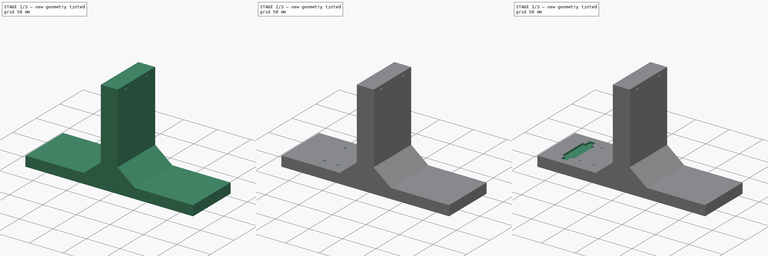
[diagram: build sequence overview — one tinted view per stage of 3, left to right]
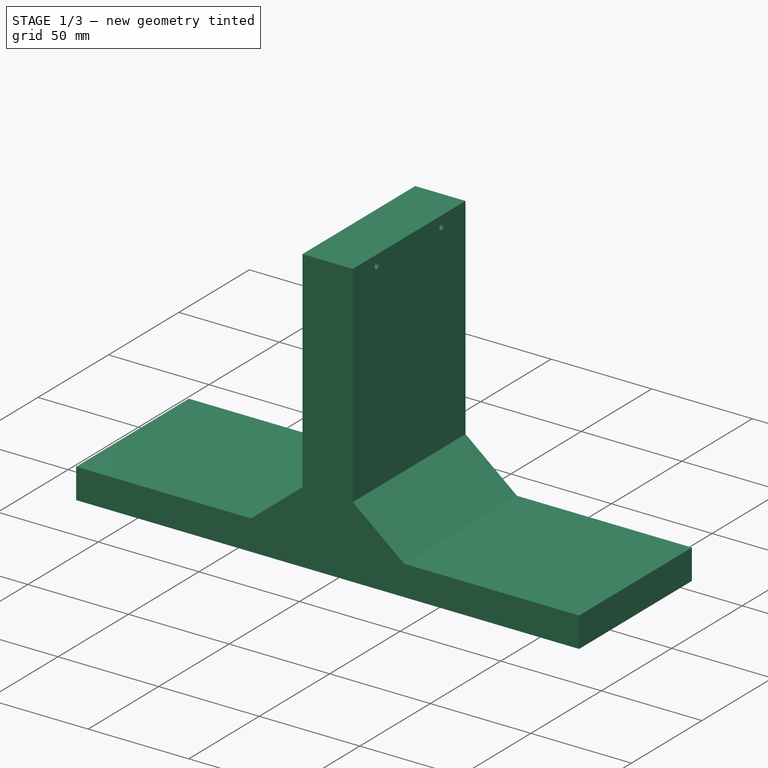
[diagram: stage 1 of 3 — iso view after this stage's code; geometry added in this stage tinted green]
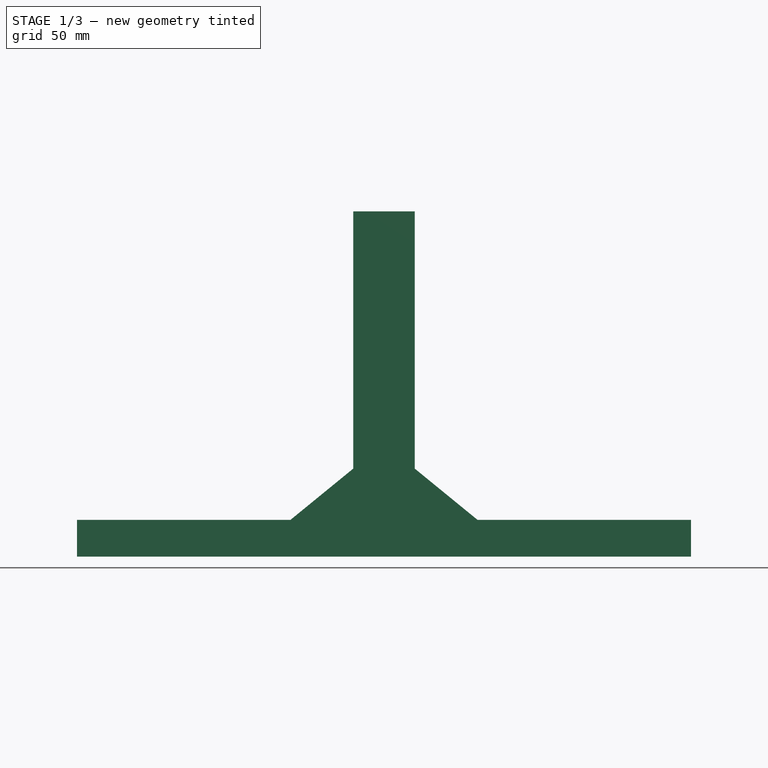
[diagram: stage 1 of 3 — front view after this stage's code; geometry added in this stage tinted green]
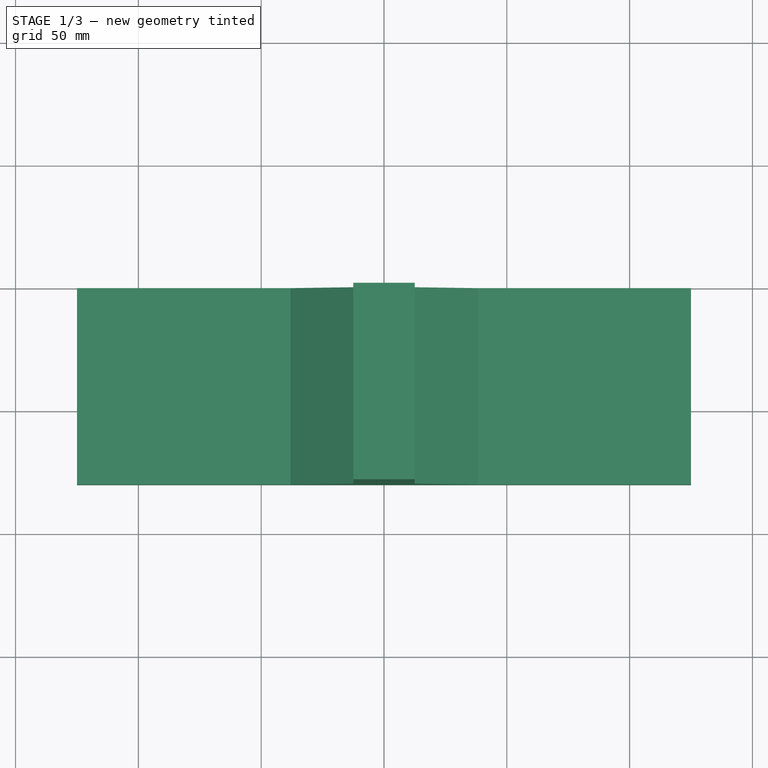
[diagram: stage 1 of 3 — top view after this stage's code; geometry added in this stage tinted green]
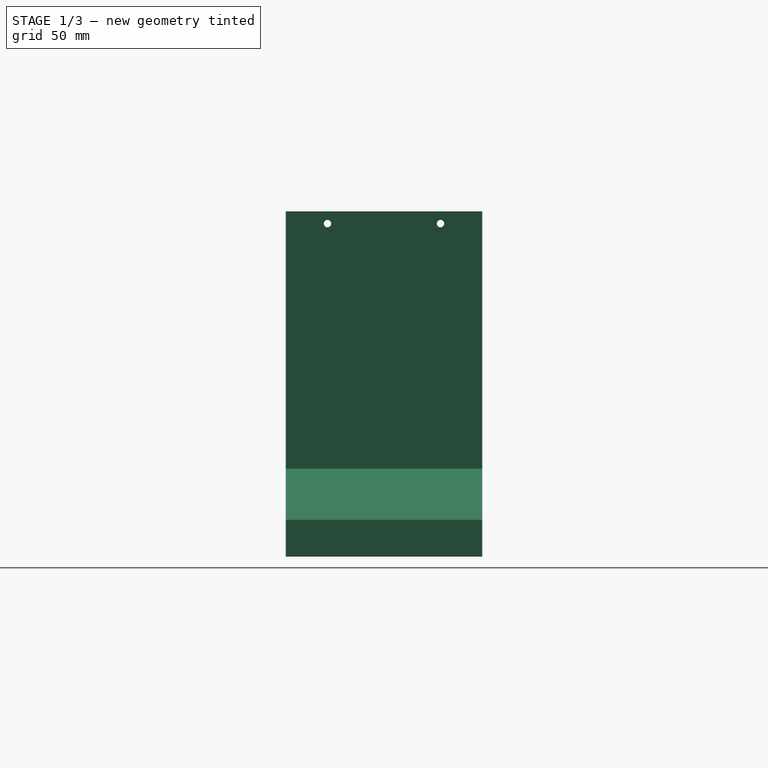
[diagram: stage 1 of 3 — right view after this stage's code; geometry added in this stage tinted green]
FCSTD DOCUMENT  (FreeCAD 0.21R33771 (Git))
Label: pump_mount
License: All rights reserved
LicenseURL: https://en.wikipedia.org/wiki/All_rights_reserved
objects: Sketcher::SketchObject×5, PartDesign::Hole×2, PartDesign::Pocket×2, PartDesign::Pad×1, PartDesign::Body×1
note: 16 computed .brp shape members not serialized (recipe doc carries the construction recipe); baked Part::Feature solids carry a one-line shape summary decoded from their .brp

FEATURE [Sketcher::SketchObject] Sketch
  FullyConstrained = false
  MapMode = 5
  Placement = pos=(0,0,0) rot=(1,0,0;1.5708rad)
  Support = -> [XZ_Plane]
  sketch-geometry (11):
    g0: LineSegment StartX=-125 StartY=0 StartZ=0 EndX=125 EndY=0 EndZ=0
    g1: LineSegment StartX=125 StartY=0 StartZ=0 EndX=125 EndY=15 EndZ=0
    g2: LineSegment StartX=125 StartY=15 StartZ=0 EndX=38.06 EndY=15 EndZ=0
    g3: LineSegment StartX=-125 StartY=15 StartZ=0 EndX=-125 EndY=0 EndZ=0
    g4: LineSegment StartX=-12.5 StartY=140.603 StartZ=0 EndX=-12.5 EndY=35.8731 EndZ=0
    g5: LineSegment StartX=12.5 StartY=35.8731 StartZ=0 EndX=12.5 EndY=140.603 EndZ=0
    g6: LineSegment StartX=12.5 StartY=140.603 StartZ=0 EndX=-12.5 EndY=140.603 EndZ=0
    g7: GeomPoint X=0 Y=74.7043 Z=0
    g8: LineSegment StartX=-12.5 StartY=35.8731 StartZ=0 EndX=-38.06 EndY=15 EndZ=0
    g9: LineSegment StartX=12.5 StartY=35.8731 StartZ=0 EndX=38.06 EndY=15 EndZ=0
    g10: LineSegment StartX=-38.06 StartY=15 StartZ=0 EndX=-125 EndY=15 EndZ=0
  constraints (32):
    c: Coincident(g0,g1)
    c: Coincident(g1,g2)
    c: Coincident(g10,g3)
    c: Coincident(g3,g0)
    c: Horizontal(g0)
    c: Horizontal(g2)
    c: Vertical(g1)
    c: Vertical(g3)
    c: PointOnObject(g0,g-1)
    c: DistanceX(g0,g0) = 250
    c: Distance(g-1,g1) = 125
    c: DistanceY(g1,g1) = 15
    c: Coincident(g5,g6)
    c: Coincident(g6,g4)
    c: Horizontal(g6)
    c: Vertical(g4)
    c: Vertical(g5)
    c: PointOnObject(g7,g-2)
    c: PointOnObject(g8,g2)
    c: Coincident(g4,g8)
    c: Coincident(g5,g9)
    c: PointOnObject(g10,g8)
    c: Coincident(g2,g9)
    c: Distance(g8) = 33
    c: Distance(g9) = 33
    c: DistanceX(g2,g2) = 86.94
    c: DistanceY(g3,g3) = 15
    c: DistanceX(g10,g10) = 86.94
    c: DistanceY(g4,g4) = 104.73
    c: DistanceY(g5,g5) = 104.73
    c: DistanceX(g6,g6) = 25
    c: Distance(g7,g5) = 12.5
FEATURE [PartDesign::Pad] Pad
  Direction = (0,-1,2e-16)
  Length = 80
  Length2 = 10
  Placement = pos=(0,0,0) rot=(1,0,0;1.5708rad)
  Profile = -> Sketch
  ReferenceAxis = -> Sketch [N_Axis]
  Type = 0
FEATURE [Sketcher::SketchObject] Sketch001
  ExternalGeometry = -> [Pad]
  FullyConstrained = true
  MapMode = 5
  Placement = pos=(12.5,0,0) rot=(0.707107,0,0.707107;3.14159rad)
  Support = -> [Pad]
  sketch-geometry (2):
    g0: Circle CenterX=135.603 CenterY=63 CenterZ=0 NormalX=0 NormalY=0 NormalZ=1 AngleXU=0 Radius=1.5
    g1: Circle CenterX=135.603 CenterY=17 CenterZ=0 NormalX=0 NormalY=0 NormalZ=1 AngleXU=0 Radius=1.5
  constraints (6):
    c: Distance(g0,g-3) = 5
    c: Distance(g1,g-3) = 5
    c: Diameter(g1) = 3
    c: Diameter(g0) = 3
    c: Distance(g0,g1) = 46
    c: Distance(g1,g-1) = 17
FEATURE [PartDesign::Hole] Hole
  BaseFeature = -> Pad
  CustomThreadClearance = 0
  Depth = 25
  DepthType = 0
  Diameter = 3
  DrillForDepth = false
  DrillPoint = 1
  DrillPointAngle = 118
  HoleCutCountersinkAngle = 90
  HoleCutCustomValues = false
  HoleCutDepth = 0
  HoleCutDiameter = 6.1
  HoleCutType = 0
  ModelThread = false
  Placement = pos=(0,0,0) rot=(1,0,0;1.5708rad)
  Profile = -> Sketch001
  Tapered = false
  TaperedAngle = 90
  ThreadClass = 0
  ThreadDepth = 25
  ThreadDepthType = 0
  ThreadDirection = 0
  ThreadFit = 0
  ThreadSize = 0
  ThreadType = 0
  Threaded = false
  UseCustomThreadClearance = false
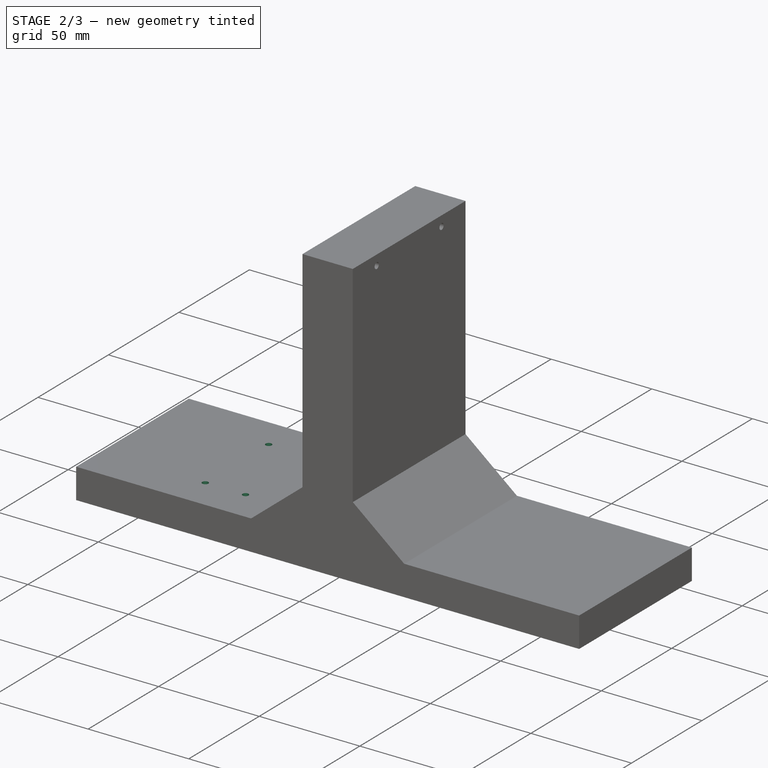
[diagram: stage 2 of 3 — iso view after this stage's code; geometry added in this stage tinted green]
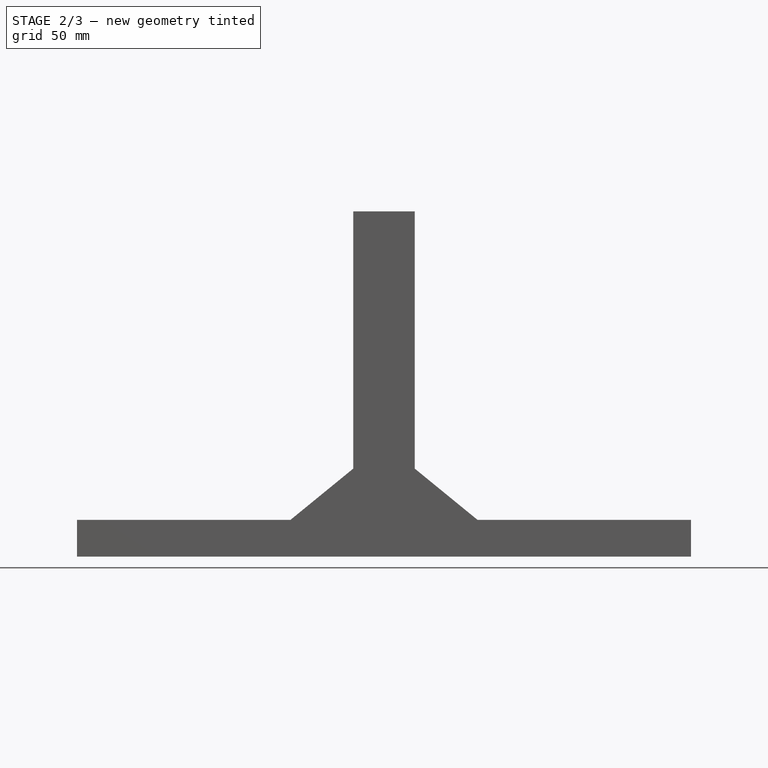
[diagram: stage 2 of 3 — front view after this stage's code; geometry added in this stage tinted green]
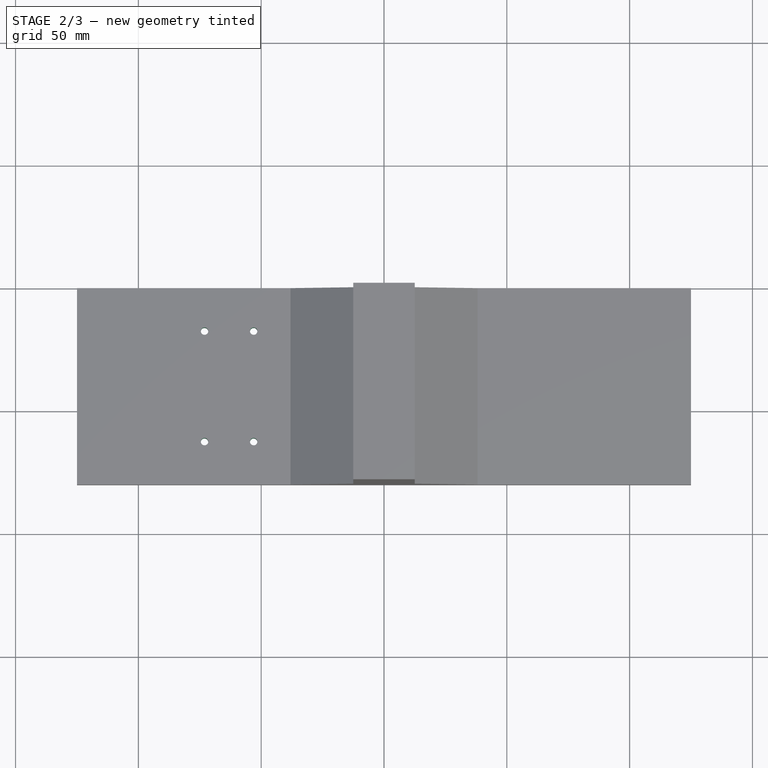
[diagram: stage 2 of 3 — top view after this stage's code; geometry added in this stage tinted green]
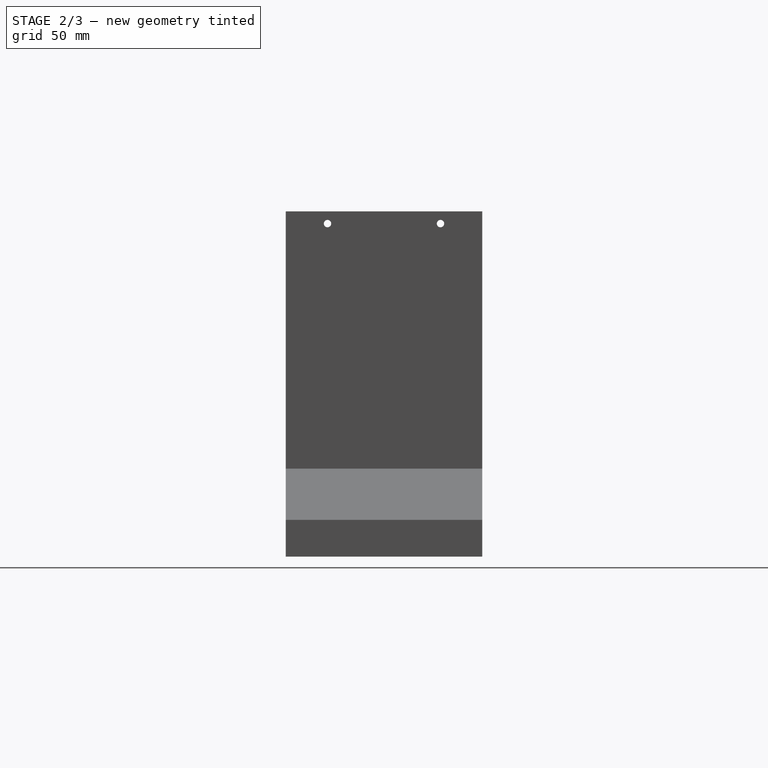
[diagram: stage 2 of 3 — right view after this stage's code; geometry added in this stage tinted green]
FEATURE [Sketcher::SketchObject] Sketch002
  ExternalGeometry = -> [Hole]
  FullyConstrained = true
  MapMode = 5
  Placement = pos=(0,3.3e-15,15) rot=(0,0,1;3.14159rad)
  Support = -> [Hole]
  sketch-geometry (4):
    g0: Circle CenterX=53.06 CenterY=62.5 CenterZ=0 NormalX=0 NormalY=0 NormalZ=1 AngleXU=0 Radius=1.5
    g1: Circle CenterX=73.06 CenterY=62.5 CenterZ=0 NormalX=0 NormalY=0 NormalZ=1 AngleXU=0 Radius=1.5
    g2: Circle CenterX=53.06 CenterY=17.5 CenterZ=0 NormalX=0 NormalY=0 NormalZ=1 AngleXU=0 Radius=1.5
    g3: Circle CenterX=73.06 CenterY=17.5 CenterZ=0 NormalX=0 NormalY=0 NormalZ=1 AngleXU=0 Radius=1.5
  constraints (12):
    c: DistanceX(g0,g1) = 20
    c: DistanceX(g2,g3) = 20
    c: DistanceY(g3,g1) = 45
    c: DistanceY(g2,g0) = 45
    c: Diameter(g1) = 3
    c: Diameter(g0) = 3
    c: Diameter(g3) = 3
    c: Diameter(g2) = 3
    c: Distance(g3,g-1) = 17.5
    c: Distance(g2,g-1) = 17.5
    c: Distance(g0,g-5) = 15
    c: Distance(g2,g-5) = 15
FEATURE [PartDesign::Hole] Hole001
  BaseFeature = -> Hole
  CustomThreadClearance = 0
  Depth = 25
  DepthType = 0
  Diameter = 3
  DrillForDepth = false
  DrillPoint = 1
  DrillPointAngle = 118
  HoleCutCountersinkAngle = 90
  HoleCutCustomValues = false
  HoleCutDepth = 0
  HoleCutDiameter = 6.1
  HoleCutType = 0
  ModelThread = false
  Placement = pos=(0,0,0) rot=(1,0,0;1.5708rad)
  Profile = -> Sketch002
  Tapered = false
  TaperedAngle = 90
  ThreadClass = 0
  ThreadDepth = 25
  ThreadDepthType = 0
  ThreadDirection = 0
  ThreadFit = 0
  ThreadSize = 0
  ThreadType = 0
  Threaded = false
  UseCustomThreadClearance = false
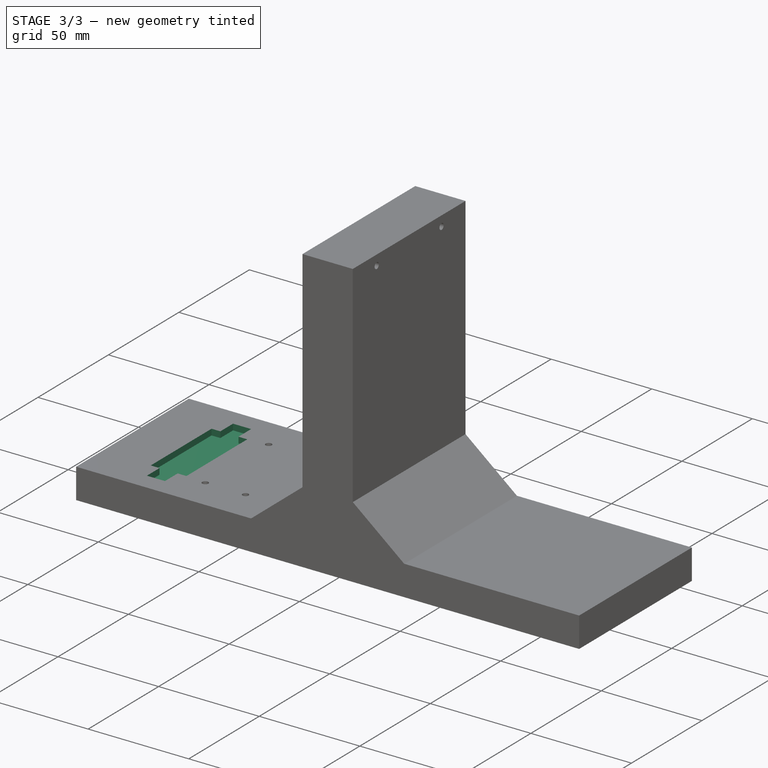
[diagram: stage 3 of 3 — iso view after this stage's code; geometry added in this stage tinted green]
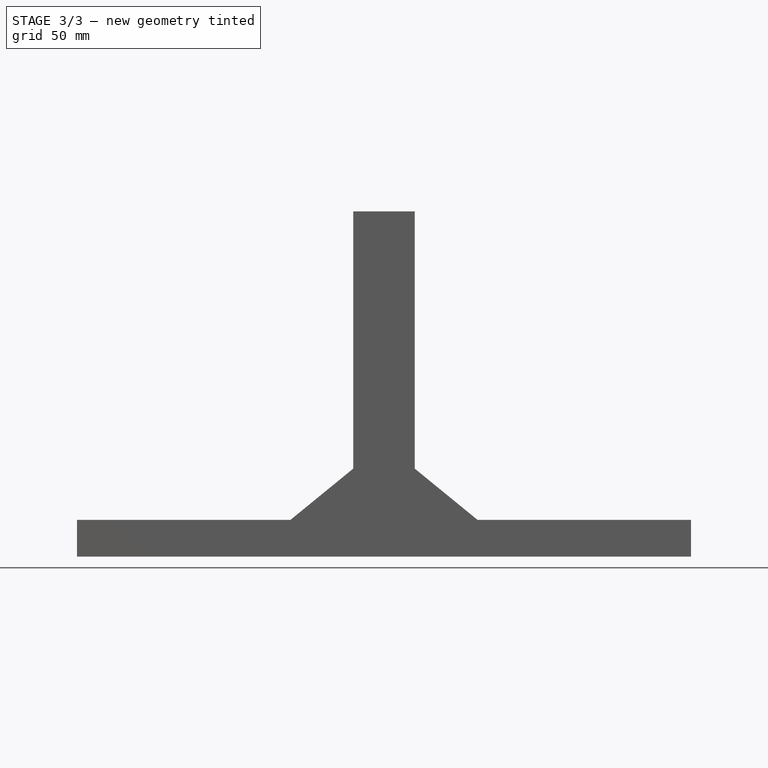
[diagram: stage 3 of 3 — front view after this stage's code; geometry added in this stage tinted green]
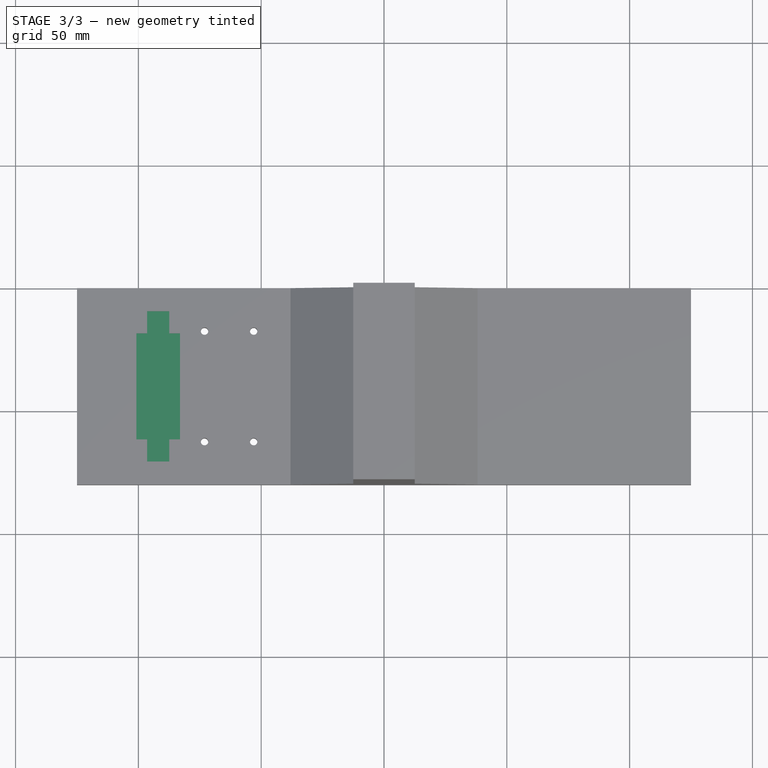
[diagram: stage 3 of 3 — top view after this stage's code; geometry added in this stage tinted green]
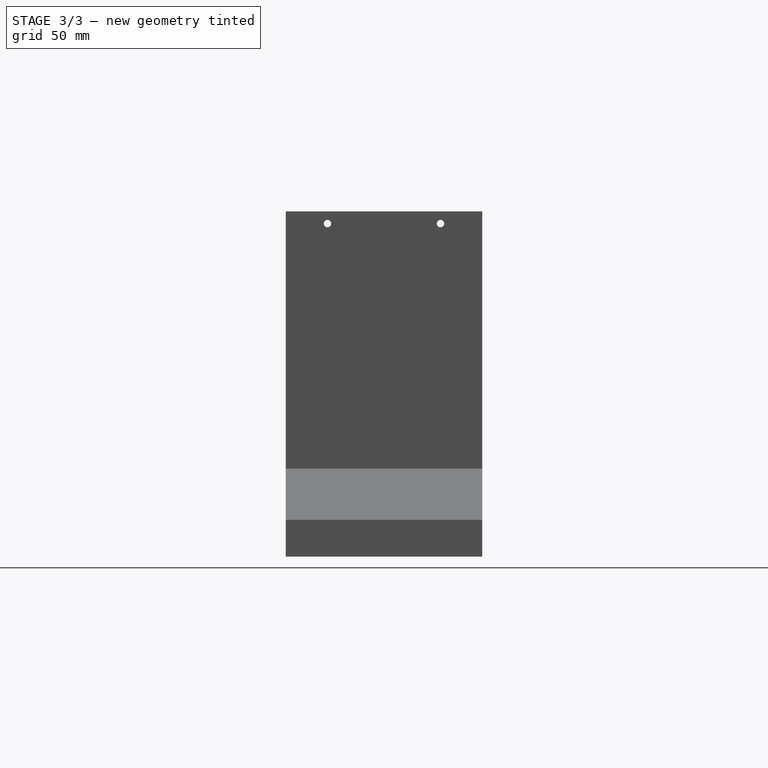
[diagram: stage 3 of 3 — right view after this stage's code; geometry added in this stage tinted green]
FEATURE [Sketcher::SketchObject] Sketch003
  ExternalGeometry = -> [Hole001]
  FullyConstrained = true
  MapMode = 5
  Placement = pos=(-1.5e-15,3.3e-15,15) rot=(0,0,1;3.14159rad)
  Support = -> [Hole001]
  sketch-geometry (4):
    g0: LineSegment StartX=83.06 StartY=61.58 StartZ=0 EndX=100.82 EndY=61.58 EndZ=0
    g1: LineSegment StartX=100.82 StartY=61.58 StartZ=0 EndX=100.82 EndY=18.42 EndZ=0
    g2: LineSegment StartX=100.82 StartY=18.42 StartZ=0 EndX=83.06 EndY=18.42 EndZ=0
    g3: LineSegment StartX=83.06 StartY=18.42 StartZ=0 EndX=83.06 EndY=61.58 EndZ=0
  constraints (12):
    c: Coincident(g0,g1)
    c: Coincident(g1,g2)
    c: Coincident(g2,g3)
    c: Coincident(g3,g0)
    c: Horizontal(g0)
    c: Horizontal(g2)
    c: Vertical(g1)
    c: Vertical(g3)
    c: DistanceY(g1,g1) = 43.16
    c: DistanceX(g2,g2) = 17.76
    c: Distance(g2,g-5) = 18.42
    c: Distance(g2,g-3) = 45
FEATURE [PartDesign::Pocket] Pocket
  BaseFeature = -> Hole001
  Direction = (1e-16,-2e-16,-1)
  Length = 3
  Length2 = 5
  Placement = pos=(0,0,0) rot=(1,0,0;1.5708rad)
  Profile = -> Sketch003
  ReferenceAxis = -> Sketch003 [N_Axis]
  Type = 0
FEATURE [Sketcher::SketchObject] Sketch004
  ExternalGeometry = -> [Pocket]
  FullyConstrained = true
  MapMode = 5
  Placement = pos=(-1.5e-15,3.3e-15,15) rot=(0,0,1;3.14159rad)
  Support = -> [Pocket]
  sketch-geometry (8):
    g0: LineSegment StartX=87.44 StartY=61.58 StartZ=0 EndX=96.44 EndY=61.58 EndZ=0
    g1: LineSegment StartX=96.44 StartY=61.58 StartZ=0 EndX=96.44 EndY=70.58 EndZ=0
    g2: LineSegment StartX=96.44 StartY=70.58 StartZ=0 EndX=87.44 EndY=70.58 EndZ=0
    g3: LineSegment StartX=87.44 StartY=70.58 StartZ=0 EndX=87.44 EndY=61.58 EndZ=0
    g4: LineSegment StartX=87.44 StartY=18.42 StartZ=0 EndX=96.44 EndY=18.42 EndZ=0
    g5: LineSegment StartX=96.44 StartY=18.42 StartZ=0 EndX=96.44 EndY=9.42 EndZ=0
    g6: LineSegment StartX=96.44 StartY=9.42 StartZ=0 EndX=87.44 EndY=9.42 EndZ=0
    g7: LineSegment StartX=87.44 StartY=9.42 StartZ=0 EndX=87.44 EndY=18.42 EndZ=0
  constraints (24):
    c: Coincident(g0,g1)
    c: Coincident(g1,g2)
    c: Coincident(g2,g3)
    c: Coincident(g3,g0)
    c: Horizontal(g0)
    c: Horizontal(g2)
    c: Vertical(g1)
    c: Vertical(g3)
    c: PointOnObject(g0,g-5)
    c: Coincident(g4,g5)
    c: Coincident(g5,g6)
    c: Coincident(g6,g7)
    c: Coincident(g7,g4)
    c: Horizontal(g4)
    c: Horizontal(g6)
    c: Vertical(g5)
    c: Vertical(g7)
    c: PointOnObject(g4,g-6)
    c: DistanceX(g2,g2) = 9
    c: Distance(g0,g-5) = 4.38
    c: DistanceY(g3,g3) = 9
    c: DistanceY(g5,g5) = 9
    c: DistanceX(g6,g6) = 9
    c: Distance(g4,g-6) = 4.38
FEATURE [PartDesign::Pocket] Pocket001
  BaseFeature = -> Pocket
  Direction = (1e-16,-2e-16,-1)
  Length = 3
  Length2 = 5
  Placement = pos=(0,0,0) rot=(1,0,0;1.5708rad)
  Profile = -> Sketch004
  ReferenceAxis = -> Sketch004 [N_Axis]
  Type = 0
FEATURE [PartDesign::Body] Body
  Group = -> [Sketch,Pad,Sketch001,Hole,Sketch002,Hole001,Sketch003,Pocket,Sketch004,Pocket001]
  Origin = -> Origin
  Tip = -> Pocket001
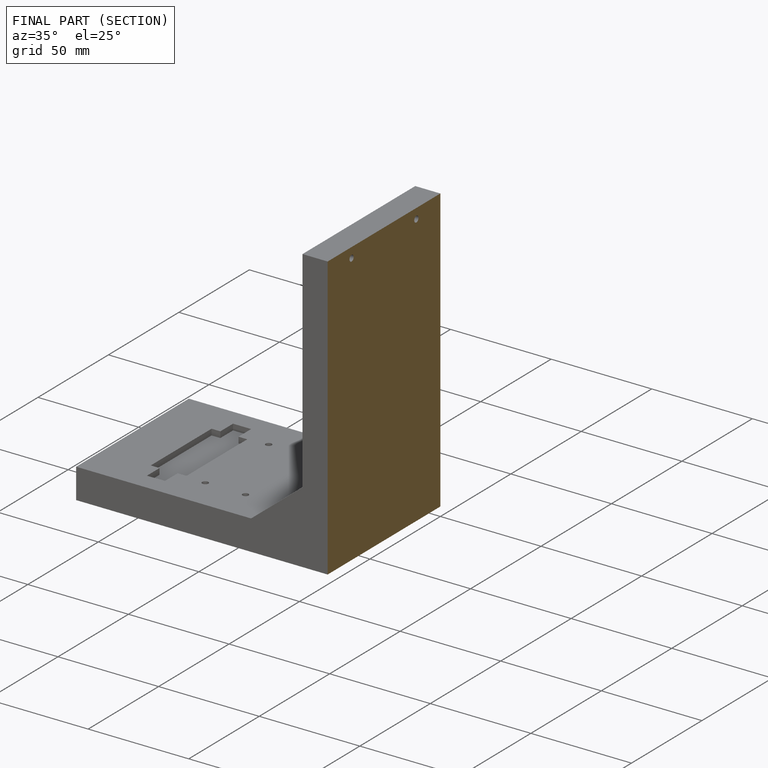
[diagram: finished part — half-section view (interior)]
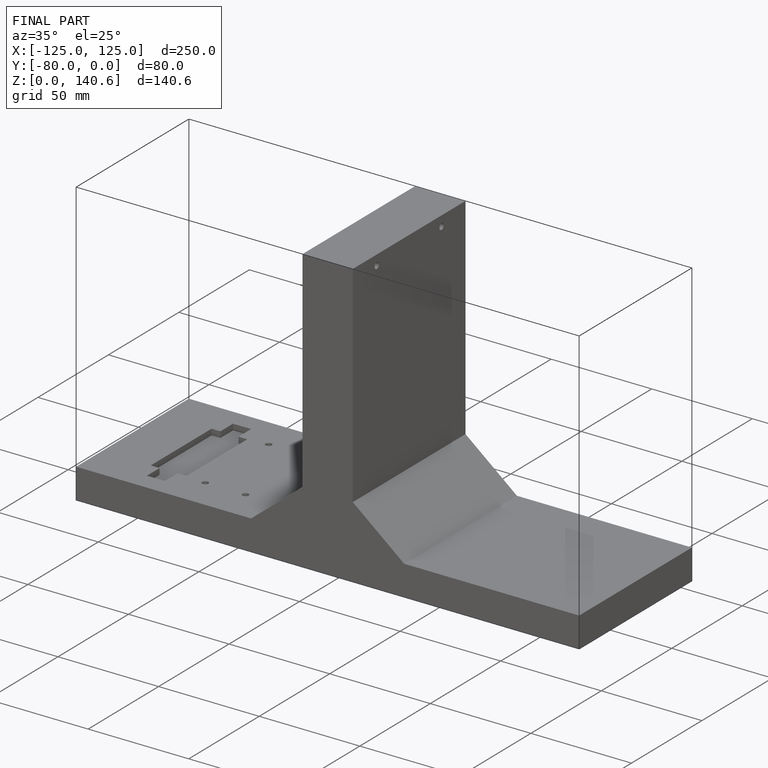
[diagram: finished part — iso view with bounding-box wireframe]
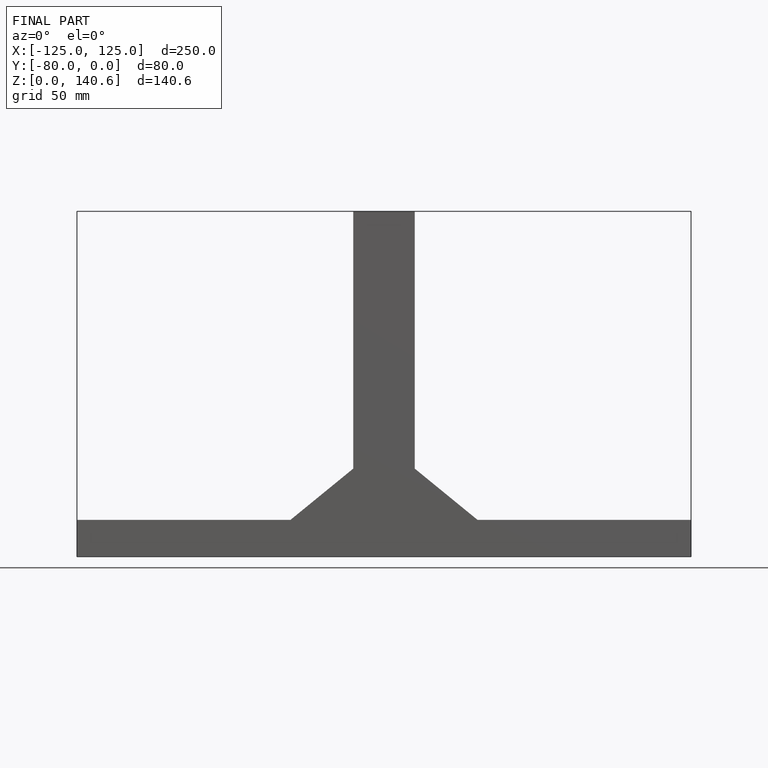
[diagram: finished part — front view with bounding-box wireframe]
